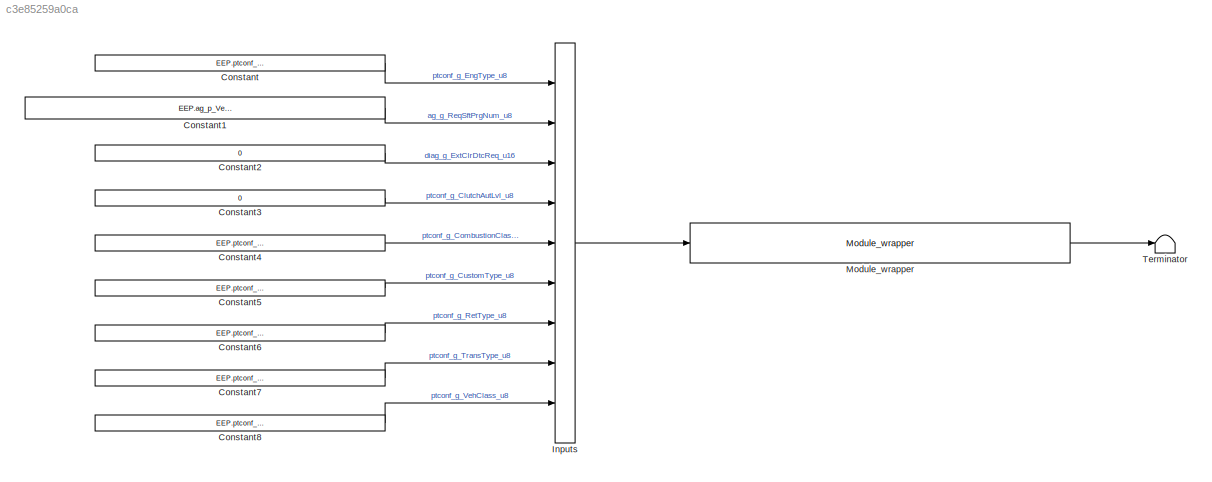
MODEL slx_c3e85259a0ca
KIND model
CONFIG AbsTol = auto
CONFIG FixedStep = 0.01
CONFIG MaxStep = auto
CONFIG MinStep = auto
CONFIG RelTol = 1e-3
CONFIG SampleTimeConstraint = Unconstrained
CONFIG Solver = FixedStepAuto
CONFIG SolverMode = Auto
CONFIG SolverName = FixedStepAuto
CONFIG StartTime = 0.0
CONFIG StopTime = 5
BLOCK [Constant] Constant
  Value = EEP.ptconf_a_Eng.EngType_u8
BLOCK [Constant] Constant1
  Value = EEP.ag_p_VehConf.SftPrgAv_u8(EEP.ag_p_VehConf.SftPrgIdxOnStart_u8+1)
BLOCK [Constant] Constant2
  Value = 0
BLOCK [Constant] Constant3
  Value = 0
BLOCK [Constant] Constant4
  Value = EEP.ptconf_a_Eng.CombustionClass_u8
BLOCK [Constant] Constant5
  Value = EEP.ptconf_p_Veh.CustomType_u8
BLOCK [Constant] Constant6
  Value = EEP.ptconf_p_Ret.RetType_u8
BLOCK [Constant] Constant7
  Value = EEP.ptconf_p_Trans.TransType_u8
BLOCK [Constant] Constant8
  Value = EEP.ptconf_p_Veh.VehClass_u8
BLOCK [BusCreator] Inputs
  InheritFromInputs = on
  Inputs = 9
  Ports = [9, 1]
BLOCK [Reference] Module_wrapper  REF=Module_wrapper/Module_wrapper
  Ports = [1, 1]
  SourceBlock = Module_wrapper/Module_wrapper
BLOCK [Terminator] Terminator
LINE Constant1:1 -> Inputs:2
LINE Constant2:1 -> Inputs:3
LINE Constant3:1 -> Inputs:4
LINE Constant4:1 -> Inputs:5
LINE Constant5:1 -> Inputs:6
LINE Constant6:1 -> Inputs:7
LINE Constant7:1 -> Inputs:8
LINE Constant8:1 -> Inputs:9
LINE Constant:1 -> Inputs:1
LINE Inputs:1 -> Module_wrapper:1
LINE Module_wrapper:1 -> Terminator:1
